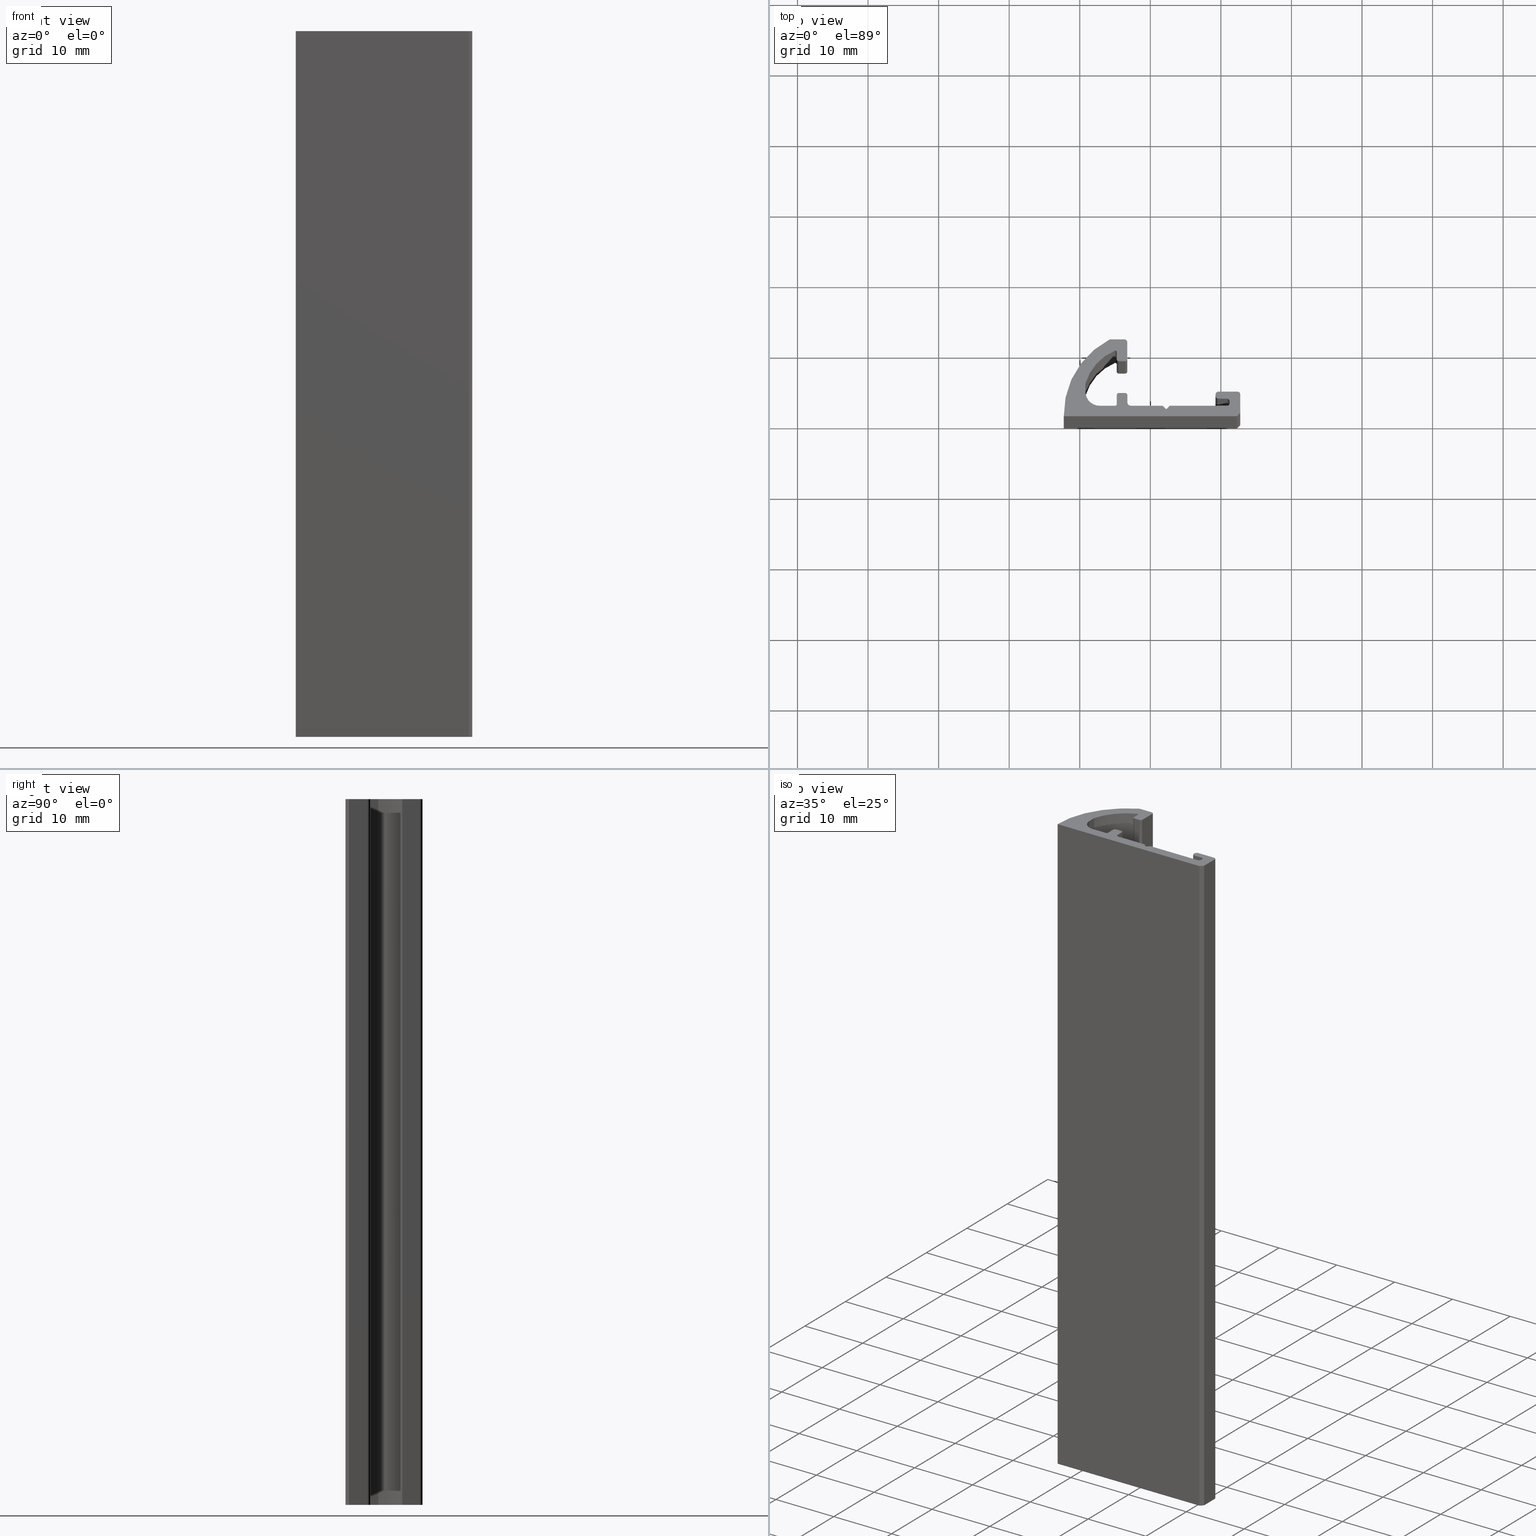
[diagram: canonical four-view strip — front | top / right | iso, engineering-drawing reading convention]
A machine part, canonical four-view strip (front | top / right | iso — engineering-drawing reading convention). The complete STEP part file that produces these views, byte-faithful:
ISO-10303-21;
HEADER;
/****************************************************************
 * Generated by software with PDE/Lib inside                    *
 * PDElib Version v4.4, created Mon 02/23/2004                  *
 * International Technegroup Inc. (www.iti-oh.com)              *
 ****************************************************************/
FILE_DESCRIPTION(('STEP AP203'),'2;1');
FILE_NAME('XB26225.stp','2011-03-21T16:29:36',(''),(''),'2009.3.110','THINKDESIGN','');
FILE_SCHEMA(('CONFIG_CONTROL_DESIGN'));
ENDSEC;
DATA;
#2=CARTESIAN_POINT('',(9.244307432465462,3.099999999671184,0.0));
#3=DIRECTION('',(-1.0,-5.297807E-010,0.0));
#4=DIRECTION('',(5.297807E-010,-1.0,0.0));
#5=AXIS2_PLACEMENT_3D('',#2,#3,#4);
#6=PLANE('',#5);
#7=CARTESIAN_POINT('',(9.244307432465462,3.099999999671184,0.0));
#8=VERTEX_POINT('',#7);
#9=CARTESIAN_POINT('',(9.244307432571418,2.899999999701663,0.0));
#10=VERTEX_POINT('',#9);
#11=CARTESIAN_POINT('',(9.244307432465462,3.099999999671184,0.0));
#12=DIRECTION('',(5.297807E-010,-1.0,0.0));
#13=VECTOR('',#12,0.199999999969521);
#14=LINE('',#11,#13);
#15=EDGE_CURVE('',#8,#10,#14,.T.);
#16=ORIENTED_EDGE('',*,*,#15,.T.);
#17=CARTESIAN_POINT('',(9.244307432571418,2.899999999701663,100.0));
#18=VERTEX_POINT('',#17);
#19=CARTESIAN_POINT('',(9.244307432571418,2.899999999701663,0.0));
#20=DIRECTION('',(0.0,0.0,1.0));
#21=VECTOR('',#20,100.0);
#22=LINE('',#19,#21);
#23=EDGE_CURVE('',#10,#18,#22,.T.);
#24=ORIENTED_EDGE('',*,*,#23,.T.);
#25=CARTESIAN_POINT('',(9.244307432465462,3.099999999671184,100.0));
#26=VERTEX_POINT('',#25);
#27=CARTESIAN_POINT('',(9.244307432465462,3.099999999671184,100.0));
#28=DIRECTION('',(5.297807E-010,-1.0,0.0));
#29=VECTOR('',#28,0.199999999969521);
#30=LINE('',#27,#29);
#31=EDGE_CURVE('',#26,#18,#30,.T.);
#32=ORIENTED_EDGE('',*,*,#31,.F.);
#33=CARTESIAN_POINT('',(9.244307432465462,3.099999999671184,0.0));
#34=DIRECTION('',(0.0,0.0,1.0));
#35=VECTOR('',#34,100.0);
#36=LINE('',#33,#35);
#37=EDGE_CURVE('',#8,#26,#36,.T.);
#38=ORIENTED_EDGE('',*,*,#37,.F.);
#39=EDGE_LOOP('',(#16,#24,#32,#38));
#40=FACE_OUTER_BOUND('',#39,.T.);
#41=ADVANCED_FACE('',(#40),#6,.T.);
#42=CARTESIAN_POINT('',(9.644307432531377,2.899999999701777,0.0));
#43=DIRECTION('',(0.0,0.0,1.0));
#44=DIRECTION('',(-1.0,-2.842171E-013,0.0));
#45=AXIS2_PLACEMENT_3D('',#42,#43,#44);
#46=CYLINDRICAL_SURFACE('',#45,0.399999999959960);
#47=CARTESIAN_POINT('',(9.644307432531377,2.499999999741817,0.0));
#48=VERTEX_POINT('',#47);
#49=CARTESIAN_POINT('',(9.644307432531377,2.899999999701777,0.0));
#50=DIRECTION('',(0.0,0.0,1.0));
#51=DIRECTION('',(-1.0,-2.842171E-013,0.0));
#52=AXIS2_PLACEMENT_3D('',#49,#50,#51);
#53=CIRCLE('',#52,0.399999999959960);
#54=EDGE_CURVE('',#10,#48,#53,.T.);
#55=ORIENTED_EDGE('',*,*,#54,.T.);
#56=CARTESIAN_POINT('',(9.644307432531377,2.499999999741817,100.0));
#57=VERTEX_POINT('',#56);
#58=CARTESIAN_POINT('',(9.644307432531377,2.499999999741817,0.0));
#59=DIRECTION('',(0.0,0.0,1.0));
#60=VECTOR('',#59,100.0);
#61=LINE('',#58,#60);
#62=EDGE_CURVE('',#48,#57,#61,.T.);
#63=ORIENTED_EDGE('',*,*,#62,.T.);
#64=CARTESIAN_POINT('',(9.644307432531377,2.899999999701777,100.0));
#65=DIRECTION('',(0.0,0.0,1.0));
#66=DIRECTION('',(-1.0,-2.842171E-013,0.0));
#67=AXIS2_PLACEMENT_3D('',#64,#65,#66);
#68=CIRCLE('',#67,0.399999999959960);
#69=EDGE_CURVE('',#18,#57,#68,.T.);
#70=ORIENTED_EDGE('',*,*,#69,.F.);
#71=ORIENTED_EDGE('',*,*,#23,.F.);
#72=EDGE_LOOP('',(#55,#63,#70,#71));
#73=FACE_OUTER_BOUND('',#72,.T.);
#74=ADVANCED_FACE('',(#73),#46,.T.);
#75=CARTESIAN_POINT('',(9.644307432531377,2.499999999741817,0.0));
#76=DIRECTION('',(0.0,-1.0,0.0));
#77=DIRECTION('',(1.0,0.0,0.0));
#78=AXIS2_PLACEMENT_3D('',#75,#76,#77);
#79=PLANE('',#78);
#80=CARTESIAN_POINT('',(10.844307432411370,2.499999999741817,0.0));
#81=VERTEX_POINT('',#80);
#82=CARTESIAN_POINT('',(9.644307432531377,2.499999999741817,0.0));
#83=DIRECTION('',(1.0,0.0,0.0));
#84=VECTOR('',#83,1.199999999879992);
#85=LINE('',#82,#84);
#86=EDGE_CURVE('',#48,#81,#85,.T.);
#87=ORIENTED_EDGE('',*,*,#86,.T.);
#88=CARTESIAN_POINT('',(10.844307432411370,2.499999999741817,100.0));
#89=VERTEX_POINT('',#88);
#90=CARTESIAN_POINT('',(10.844307432411370,2.499999999741817,0.0));
#91=DIRECTION('',(0.0,0.0,1.0));
#92=VECTOR('',#91,100.0);
#93=LINE('',#90,#92);
#94=EDGE_CURVE('',#81,#89,#93,.T.);
#95=ORIENTED_EDGE('',*,*,#94,.T.);
#96=CARTESIAN_POINT('',(9.644307432531377,2.499999999741817,100.0));
#97=DIRECTION('',(1.0,0.0,0.0));
#98=VECTOR('',#97,1.199999999879992);
#99=LINE('',#96,#98);
#100=EDGE_CURVE('',#57,#89,#99,.T.);
#101=ORIENTED_EDGE('',*,*,#100,.F.);
#102=ORIENTED_EDGE('',*,*,#62,.F.);
#103=EDGE_LOOP('',(#87,#95,#101,#102));
#104=FACE_OUTER_BOUND('',#103,.T.);
#105=ADVANCED_FACE('',(#104),#79,.T.);
#106=CARTESIAN_POINT('',(10.844307432411370,2.099999999781858,0.0));
#107=DIRECTION('',(0.0,0.0,-1.0));
#108=DIRECTION('',(6.123251E-017,1.0,0.0));
#109=AXIS2_PLACEMENT_3D('',#106,#107,#108);
#110=CYLINDRICAL_SURFACE('',#109,0.399999999959960);
#111=CARTESIAN_POINT('',(11.244307432371329,2.099999999781176,0.0));
#112=VERTEX_POINT('',#111);
#113=CARTESIAN_POINT('',(10.844307432411370,2.099999999781858,0.0));
#114=DIRECTION('',(0.0,0.0,-1.0));
#115=DIRECTION('',(1.0,-1.705303E-012,0.0));
#116=AXIS2_PLACEMENT_3D('',#113,#114,#115);
#117=CIRCLE('',#116,0.399999999959960);
#118=EDGE_CURVE('',#81,#112,#117,.T.);
#119=ORIENTED_EDGE('',*,*,#118,.T.);
#120=CARTESIAN_POINT('',(11.244307432371329,2.099999999781176,100.0));
#121=VERTEX_POINT('',#120);
#122=CARTESIAN_POINT('',(11.244307432371329,2.099999999781176,0.0));
#123=DIRECTION('',(0.0,0.0,1.0));
#124=VECTOR('',#123,100.0);
#125=LINE('',#122,#124);
#126=EDGE_CURVE('',#112,#121,#125,.T.);
#127=ORIENTED_EDGE('',*,*,#126,.T.);
#128=CARTESIAN_POINT('',(10.844307432411370,2.099999999781858,100.0));
#129=DIRECTION('',(0.0,0.0,-1.0));
#130=DIRECTION('',(1.0,-1.705303E-012,0.0));
#131=AXIS2_PLACEMENT_3D('',#128,#129,#130);
#132=CIRCLE('',#131,0.399999999959960);
#133=EDGE_CURVE('',#89,#121,#132,.T.);
#134=ORIENTED_EDGE('',*,*,#133,.F.);
#135=ORIENTED_EDGE('',*,*,#94,.F.);
#136=EDGE_LOOP('',(#119,#127,#134,#135));
#137=FACE_OUTER_BOUND('',#136,.T.);
#138=ADVANCED_FACE('',(#137),#110,.F.);
#139=CARTESIAN_POINT('',(11.244307432371329,2.099999999781176,0.0));
#140=DIRECTION('',(-1.0,0.0,0.0));
#141=DIRECTION('',(0.0,-1.0,0.0));
#142=AXIS2_PLACEMENT_3D('',#139,#140,#141);
#143=PLANE('',#142);
#144=CARTESIAN_POINT('',(11.244307432371329,1.899999999801196,0.0));
#145=VERTEX_POINT('',#144);
#146=CARTESIAN_POINT('',(11.244307432371329,2.099999999781176,0.0));
#147=DIRECTION('',(0.0,-1.0,0.0));
#148=VECTOR('',#147,0.199999999979980);
#149=LINE('',#146,#148);
#150=EDGE_CURVE('',#112,#145,#149,.T.);
#151=ORIENTED_EDGE('',*,*,#150,.T.);
#152=CARTESIAN_POINT('',(11.244307432371329,1.899999999801196,100.0));
#153=VERTEX_POINT('',#152);
#154=CARTESIAN_POINT('',(11.244307432371329,1.899999999801196,0.0));
#155=DIRECTION('',(0.0,0.0,1.0));
#156=VECTOR('',#155,100.0);
#157=LINE('',#154,#156);
#158=EDGE_CURVE('',#145,#153,#157,.T.);
#159=ORIENTED_EDGE('',*,*,#158,.T.);
#160=CARTESIAN_POINT('',(11.244307432371329,2.099999999781176,100.0));
#161=DIRECTION('',(0.0,-1.0,0.0));
#162=VECTOR('',#161,0.199999999979980);
#163=LINE('',#160,#162);
#164=EDGE_CURVE('',#121,#153,#163,.T.);
#165=ORIENTED_EDGE('',*,*,#164,.F.);
#166=ORIENTED_EDGE('',*,*,#126,.F.);
#167=EDGE_LOOP('',(#151,#159,#165,#166));
#168=FACE_OUTER_BOUND('',#167,.T.);
#169=ADVANCED_FACE('',(#168),#143,.T.);
#170=CARTESIAN_POINT('',(10.844307432411256,1.899999999785450,0.0));
#171=DIRECTION('',(0.0,0.0,-1.0));
#172=DIRECTION('',(1.0,3.936401E-011,0.0));
#173=AXIS2_PLACEMENT_3D('',#170,#171,#172);
#174=CYLINDRICAL_SURFACE('',#173,0.399999999960016);
#175=CARTESIAN_POINT('',(10.844307432411256,1.499999999825434,0.0));
#176=VERTEX_POINT('',#175);
#177=CARTESIAN_POINT('',(10.844307432411256,1.899999999785450,0.0));
#178=DIRECTION('',(0.0,0.0,-1.0));
#179=DIRECTION('',(0.0,-1.0,0.0));
#180=AXIS2_PLACEMENT_3D('',#177,#178,#179);
#181=CIRCLE('',#180,0.399999999960016);
#182=EDGE_CURVE('',#145,#176,#181,.T.);
#183=ORIENTED_EDGE('',*,*,#182,.T.);
#184=CARTESIAN_POINT('',(10.844307432411256,1.499999999825434,100.0));
#185=VERTEX_POINT('',#184);
#186=CARTESIAN_POINT('',(10.844307432411256,1.499999999825434,0.0));
#187=DIRECTION('',(0.0,0.0,1.0));
#188=VECTOR('',#187,100.0);
#189=LINE('',#186,#188);
#190=EDGE_CURVE('',#176,#185,#189,.T.);
#191=ORIENTED_EDGE('',*,*,#190,.T.);
#192=CARTESIAN_POINT('',(10.844307432411256,1.899999999785450,100.0));
#193=DIRECTION('',(0.0,0.0,-1.0));
#194=DIRECTION('',(0.0,-1.0,0.0));
#195=AXIS2_PLACEMENT_3D('',#192,#193,#194);
#196=CIRCLE('',#195,0.399999999960016);
#197=EDGE_CURVE('',#153,#185,#196,.T.);
#198=ORIENTED_EDGE('',*,*,#197,.F.);
#199=ORIENTED_EDGE('',*,*,#158,.F.);
#200=EDGE_LOOP('',(#183,#191,#198,#199));
#201=FACE_OUTER_BOUND('',#200,.T.);
#202=ADVANCED_FACE('',(#201),#174,.F.);
#203=CARTESIAN_POINT('',(10.844307432411256,1.499999999825434,0.0));
#204=DIRECTION('',(-1.284240E-012,1.0,0.0));
#205=DIRECTION('',(-1.0,-1.284240E-012,0.0));
#206=AXIS2_PLACEMENT_3D('',#203,#204,#205);
#207=PLANE('',#206);
#208=CARTESIAN_POINT('',(2.744307433262634,1.499999999815032,0.0));
#209=VERTEX_POINT('',#208);
#210=CARTESIAN_POINT('',(10.844307432411256,1.499999999825434,0.0));
#211=DIRECTION('',(-1.0,-1.284240E-012,0.0));
#212=VECTOR('',#211,8.099999999148622);
#213=LINE('',#210,#212);
#214=EDGE_CURVE('',#176,#209,#213,.T.);
#215=ORIENTED_EDGE('',*,*,#214,.T.);
#216=CARTESIAN_POINT('',(2.744307433262634,1.499999999815032,100.0));
#217=VERTEX_POINT('',#216);
#218=CARTESIAN_POINT('',(2.744307433262634,1.499999999815032,0.0));
#219=DIRECTION('',(0.0,0.0,1.0));
#220=VECTOR('',#219,100.0);
#221=LINE('',#218,#220);
#222=EDGE_CURVE('',#209,#217,#221,.T.);
#223=ORIENTED_EDGE('',*,*,#222,.T.);
#224=CARTESIAN_POINT('',(10.844307432411256,1.499999999825434,100.0));
#225=DIRECTION('',(-1.0,-1.284240E-012,0.0));
#226=VECTOR('',#225,8.099999999148622);
#227=LINE('',#224,#226);
#228=EDGE_CURVE('',#185,#217,#227,.T.);
#229=ORIENTED_EDGE('',*,*,#228,.F.);
#230=ORIENTED_EDGE('',*,*,#190,.F.);
#231=EDGE_LOOP('',(#215,#223,#229,#230));
#232=FACE_OUTER_BOUND('',#231,.T.);
#233=ADVANCED_FACE('',(#232),#207,.T.);
#234=CARTESIAN_POINT('',(2.744307433262634,1.499999999815032,0.0));
#235=DIRECTION('',(-0.707106781179112,0.707106781193984,0.0));
#236=DIRECTION('',(-0.707106781193984,-0.707106781179112,0.0));
#237=AXIS2_PLACEMENT_3D('',#234,#235,#236);
#238=PLANE('',#237);
#239=CARTESIAN_POINT('',(2.244307433178619,0.999999999741533,0.0));
#240=VERTEX_POINT('',#239);
#241=CARTESIAN_POINT('',(2.744307433262634,1.499999999815032,0.0));
#242=DIRECTION('',(-0.707106781193983,-0.707106781179112,0.0));
#243=VECTOR('',#242,0.707106781297926);
#244=LINE('',#241,#243);
#245=EDGE_CURVE('',#209,#240,#244,.T.);
#246=ORIENTED_EDGE('',*,*,#245,.T.);
#247=CARTESIAN_POINT('',(2.244307433178619,0.999999999741533,100.0));
#248=VERTEX_POINT('',#247);
#249=CARTESIAN_POINT('',(2.244307433178619,0.999999999741533,0.0));
#250=DIRECTION('',(0.0,0.0,1.0));
#251=VECTOR('',#250,100.0);
#252=LINE('',#249,#251);
#253=EDGE_CURVE('',#240,#248,#252,.T.);
#254=ORIENTED_EDGE('',*,*,#253,.T.);
#255=CARTESIAN_POINT('',(2.744307433262634,1.499999999815032,100.0));
#256=DIRECTION('',(-0.707106781193983,-0.707106781179112,0.0));
#257=VECTOR('',#256,0.707106781297926);
#258=LINE('',#255,#257);
#259=EDGE_CURVE('',#217,#248,#258,.T.);
#260=ORIENTED_EDGE('',*,*,#259,.F.);
#261=ORIENTED_EDGE('',*,*,#222,.F.);
#262=EDGE_LOOP('',(#246,#254,#260,#261));
#263=FACE_OUTER_BOUND('',#262,.T.);
#264=ADVANCED_FACE('',(#263),#238,.T.);
#265=CARTESIAN_POINT('',(2.244307433178619,0.999999999741533,0.0));
#266=DIRECTION('',(0.707106781186387,0.707106781186708,0.0));
#267=DIRECTION('',(-0.707106781186708,0.707106781186387,0.0));
#268=AXIS2_PLACEMENT_3D('',#265,#266,#267);
#269=PLANE('',#268);
#270=CARTESIAN_POINT('',(1.744307433078006,1.499999999841919,0.0));
#271=VERTEX_POINT('',#270);
#272=CARTESIAN_POINT('',(2.244307433178619,0.999999999741533,0.0));
#273=DIRECTION('',(-0.707106781186708,0.707106781186387,0.0));
#274=VECTOR('',#273,0.707106781328675);
#275=LINE('',#272,#274);
#276=EDGE_CURVE('',#240,#271,#275,.T.);
#277=ORIENTED_EDGE('',*,*,#276,.T.);
#278=CARTESIAN_POINT('',(1.744307433078006,1.499999999841919,100.0));
#279=VERTEX_POINT('',#278);
#280=CARTESIAN_POINT('',(1.744307433078006,1.499999999841919,0.0));
#281=DIRECTION('',(0.0,0.0,1.0));
#282=VECTOR('',#281,100.0);
#283=LINE('',#280,#282);
#284=EDGE_CURVE('',#271,#279,#283,.T.);
#285=ORIENTED_EDGE('',*,*,#284,.T.);
#286=CARTESIAN_POINT('',(2.244307433178619,0.999999999741533,100.0));
#287=DIRECTION('',(-0.707106781186708,0.707106781186387,0.0));
#288=VECTOR('',#287,0.707106781328675);
#289=LINE('',#286,#288);
#290=EDGE_CURVE('',#248,#279,#289,.T.);
#291=ORIENTED_EDGE('',*,*,#290,.F.);
#292=ORIENTED_EDGE('',*,*,#253,.F.);
#293=EDGE_LOOP('',(#277,#285,#291,#292));
#294=FACE_OUTER_BOUND('',#293,.T.);
#295=ADVANCED_FACE('',(#294),#269,.T.);
#296=CARTESIAN_POINT('',(1.744307433078006,1.499999999841919,0.0));
#297=DIRECTION('',(0.0,1.0,0.0));
#298=DIRECTION('',(-1.0,0.0,0.0));
#299=AXIS2_PLACEMENT_3D('',#296,#297,#298);
#300=PLANE('',#299);
#301=CARTESIAN_POINT('',(-2.755692566471907,1.499999999842089,0.0));
#302=VERTEX_POINT('',#301);
#303=CARTESIAN_POINT('',(1.744307433078006,1.499999999841919,0.0));
#304=DIRECTION('',(-1.0,0.0,0.0));
#305=VECTOR('',#304,4.499999999549914);
#306=LINE('',#303,#305);
#307=EDGE_CURVE('',#271,#302,#306,.T.);
#308=ORIENTED_EDGE('',*,*,#307,.T.);
#309=CARTESIAN_POINT('',(-2.755692566471907,1.499999999842089,100.0));
#310=VERTEX_POINT('',#309);
#311=CARTESIAN_POINT('',(-2.755692566471907,1.499999999842089,0.0));
#312=DIRECTION('',(0.0,0.0,1.0));
#313=VECTOR('',#312,100.0);
#314=LINE('',#311,#313);
#315=EDGE_CURVE('',#302,#310,#314,.T.);
#316=ORIENTED_EDGE('',*,*,#315,.T.);
#317=CARTESIAN_POINT('',(1.744307433078006,1.499999999841919,100.0));
#318=DIRECTION('',(-1.0,0.0,0.0));
#319=VECTOR('',#318,4.499999999549914);
#320=LINE('',#317,#319);
#321=EDGE_CURVE('',#279,#310,#320,.T.);
#322=ORIENTED_EDGE('',*,*,#321,.F.);
#323=ORIENTED_EDGE('',*,*,#284,.F.);
#324=EDGE_LOOP('',(#308,#316,#322,#323));
#325=FACE_OUTER_BOUND('',#324,.T.);
#326=ADVANCED_FACE('',(#325),#300,.T.);
#327=CARTESIAN_POINT('',(-2.755692566471907,1.999999999792067,0.0));
#328=DIRECTION('',(0.0,0.0,-1.0));
#329=DIRECTION('',(-1.960054E-015,-1.0,0.0));
#330=AXIS2_PLACEMENT_3D('',#327,#328,#329);
#331=CYLINDRICAL_SURFACE('',#330,0.499999999950000);
#332=CARTESIAN_POINT('',(-3.255692566421885,1.999999999792067,0.0));
#333=VERTEX_POINT('',#332);
#334=CARTESIAN_POINT('',(-2.755692566471907,1.999999999792067,0.0));
#335=DIRECTION('',(0.0,0.0,-1.0));
#336=DIRECTION('',(1.0,0.0,0.0));
#337=AXIS2_PLACEMENT_3D('',#334,#335,#336);
#338=CIRCLE('',#337,0.499999999950000);
#339=EDGE_CURVE('',#302,#333,#338,.T.);
#340=ORIENTED_EDGE('',*,*,#339,.T.);
#341=CARTESIAN_POINT('',(-3.255692566421885,1.999999999792067,100.0));
#342=VERTEX_POINT('',#341);
#343=CARTESIAN_POINT('',(-3.255692566421885,1.999999999792067,0.0));
#344=DIRECTION('',(0.0,0.0,1.0));
#345=VECTOR('',#344,100.0);
#346=LINE('',#343,#345);
#347=EDGE_CURVE('',#333,#342,#346,.T.);
#348=ORIENTED_EDGE('',*,*,#347,.T.);
#349=CARTESIAN_POINT('',(-2.755692566471907,1.999999999792067,100.0));
#350=DIRECTION('',(0.0,0.0,-1.0));
#351=DIRECTION('',(1.0,0.0,0.0));
#352=AXIS2_PLACEMENT_3D('',#349,#350,#351);
#353=CIRCLE('',#352,0.499999999950000);
#354=EDGE_CURVE('',#310,#342,#353,.T.);
#355=ORIENTED_EDGE('',*,*,#354,.F.);
#356=ORIENTED_EDGE('',*,*,#315,.F.);
#357=EDGE_LOOP('',(#340,#348,#355,#356));
#358=FACE_OUTER_BOUND('',#357,.T.);
#359=ADVANCED_FACE('',(#358),#331,.F.);
#360=CARTESIAN_POINT('',(-3.255692566421885,1.999999999792067,0.0));
#361=DIRECTION('',(1.0,0.0,0.0));
#362=DIRECTION('',(0.0,1.0,0.0));
#363=AXIS2_PLACEMENT_3D('',#360,#361,#362);
#364=PLANE('',#363);
#365=CARTESIAN_POINT('',(-3.255692566421885,2.999999999691966,0.0));
#366=VERTEX_POINT('',#365);
#367=CARTESIAN_POINT('',(-3.255692566421885,1.999999999792067,0.0));
#368=DIRECTION('',(0.0,1.0,0.0));
#369=VECTOR('',#368,0.999999999899899);
#370=LINE('',#367,#369);
#371=EDGE_CURVE('',#333,#366,#370,.T.);
#372=ORIENTED_EDGE('',*,*,#371,.T.);
#373=CARTESIAN_POINT('',(-3.255692566421885,2.999999999691966,100.0));
#374=VERTEX_POINT('',#373);
#375=CARTESIAN_POINT('',(-3.255692566421885,2.999999999691966,0.0));
#376=DIRECTION('',(0.0,0.0,1.0));
#377=VECTOR('',#376,100.0);
#378=LINE('',#375,#377);
#379=EDGE_CURVE('',#366,#374,#378,.T.);
#380=ORIENTED_EDGE('',*,*,#379,.T.);
#381=CARTESIAN_POINT('',(-3.255692566421885,1.999999999792067,100.0));
#382=DIRECTION('',(0.0,1.0,0.0));
#383=VECTOR('',#382,0.999999999899899);
#384=LINE('',#381,#383);
#385=EDGE_CURVE('',#342,#374,#384,.T.);
#386=ORIENTED_EDGE('',*,*,#385,.F.);
#387=ORIENTED_EDGE('',*,*,#347,.F.);
#388=EDGE_LOOP('',(#372,#380,#386,#387));
#389=FACE_OUTER_BOUND('',#388,.T.);
#390=ADVANCED_FACE('',(#389),#364,.T.);
#391=CARTESIAN_POINT('',(-3.555692566391940,2.999999999691966,0.0));
#392=DIRECTION('',(0.0,0.0,1.0));
#393=DIRECTION('',(1.0,0.0,0.0));
#394=AXIS2_PLACEMENT_3D('',#391,#392,#393);
#395=CYLINDRICAL_SURFACE('',#394,0.299999999970000);
#396=CARTESIAN_POINT('',(-3.555692566391940,3.299999999661964,0.0));
#397=VERTEX_POINT('',#396);
#398=CARTESIAN_POINT('',(-3.555692566391940,2.999999999691966,0.0));
#399=DIRECTION('',(0.0,0.0,1.0));
#400=DIRECTION('',(1.0,0.0,0.0));
#401=AXIS2_PLACEMENT_3D('',#398,#399,#400);
#402=CIRCLE('',#401,0.299999999970000);
#403=EDGE_CURVE('',#366,#397,#402,.T.);
#404=ORIENTED_EDGE('',*,*,#403,.T.);
#405=CARTESIAN_POINT('',(-3.555692566391940,3.299999999661964,100.0));
#406=VERTEX_POINT('',#405);
#407=CARTESIAN_POINT('',(-3.555692566391940,3.299999999661964,0.0));
#408=DIRECTION('',(0.0,0.0,1.0));
#409=VECTOR('',#408,100.0);
#410=LINE('',#407,#409);
#411=EDGE_CURVE('',#397,#406,#410,.T.);
#412=ORIENTED_EDGE('',*,*,#411,.T.);
#413=CARTESIAN_POINT('',(-3.555692566391940,2.999999999691966,100.0));
#414=DIRECTION('',(0.0,0.0,1.0));
#415=DIRECTION('',(1.0,0.0,0.0));
#416=AXIS2_PLACEMENT_3D('',#413,#414,#415);
#417=CIRCLE('',#416,0.299999999970000);
#418=EDGE_CURVE('',#374,#406,#417,.T.);
#419=ORIENTED_EDGE('',*,*,#418,.F.);
#420=ORIENTED_EDGE('',*,*,#379,.F.);
#421=EDGE_LOOP('',(#404,#412,#419,#420));
#422=FACE_OUTER_BOUND('',#421,.T.);
#423=ADVANCED_FACE('',(#422),#395,.T.);
#424=CARTESIAN_POINT('',(-3.555692566391940,3.299999999661964,0.0));
#425=DIRECTION('',(0.0,1.0,0.0));
#426=DIRECTION('',(-1.0,0.0,0.0));
#427=AXIS2_PLACEMENT_3D('',#424,#425,#426);
#428=PLANE('',#427);
#429=CARTESIAN_POINT('',(-4.455692566301991,3.299999999661964,0.0));
#430=VERTEX_POINT('',#429);
#431=CARTESIAN_POINT('',(-3.555692566391940,3.299999999661964,0.0));
#432=DIRECTION('',(-1.0,0.0,0.0));
#433=VECTOR('',#432,0.899999999910051);
#434=LINE('',#431,#433);
#435=EDGE_CURVE('',#397,#430,#434,.T.);
#436=ORIENTED_EDGE('',*,*,#435,.T.);
#437=CARTESIAN_POINT('',(-4.455692566301991,3.299999999661964,100.0));
#438=VERTEX_POINT('',#437);
#439=CARTESIAN_POINT('',(-4.455692566301991,3.299999999661964,0.0));
#440=DIRECTION('',(0.0,0.0,1.0));
#441=VECTOR('',#440,100.0);
#442=LINE('',#439,#441);
#443=EDGE_CURVE('',#430,#438,#442,.T.);
#444=ORIENTED_EDGE('',*,*,#443,.T.);
#445=CARTESIAN_POINT('',(-3.555692566391940,3.299999999661964,100.0));
#446=DIRECTION('',(-1.0,0.0,0.0));
#447=VECTOR('',#446,0.899999999910051);
#448=LINE('',#445,#447);
#449=EDGE_CURVE('',#406,#438,#448,.T.);
#450=ORIENTED_EDGE('',*,*,#449,.F.);
#451=ORIENTED_EDGE('',*,*,#411,.F.);
#452=EDGE_LOOP('',(#436,#444,#450,#451));
#453=FACE_OUTER_BOUND('',#452,.T.);
#454=ADVANCED_FACE('',(#453),#428,.T.);
#455=CARTESIAN_POINT('',(-4.455692566301991,2.999999999691966,0.0));
#456=DIRECTION('',(0.0,0.0,1.0));
#457=DIRECTION('',(1.0,0.0,0.0));
#458=AXIS2_PLACEMENT_3D('',#455,#456,#457);
#459=CYLINDRICAL_SURFACE('',#458,0.299999999970000);
#460=CARTESIAN_POINT('',(-4.755692566271932,2.999999999691966,0.0));
#461=VERTEX_POINT('',#460);
#462=CARTESIAN_POINT('',(-4.455692566301991,2.999999999691966,0.0));
#463=DIRECTION('',(0.0,0.0,1.0));
#464=DIRECTION('',(1.0,0.0,0.0));
#465=AXIS2_PLACEMENT_3D('',#462,#463,#464);
#466=CIRCLE('',#465,0.299999999970000);
#467=EDGE_CURVE('',#430,#461,#466,.T.);
#468=ORIENTED_EDGE('',*,*,#467,.T.);
#469=CARTESIAN_POINT('',(-4.755692566271932,2.999999999691966,100.0));
#470=VERTEX_POINT('',#469);
#471=CARTESIAN_POINT('',(-4.755692566271932,2.999999999691966,0.0));
#472=DIRECTION('',(0.0,0.0,1.0));
#473=VECTOR('',#472,100.0);
#474=LINE('',#471,#473);
#475=EDGE_CURVE('',#461,#470,#474,.T.);
#476=ORIENTED_EDGE('',*,*,#475,.T.);
#477=CARTESIAN_POINT('',(-4.455692566301991,2.999999999691966,100.0));
#478=DIRECTION('',(0.0,0.0,1.0));
#479=DIRECTION('',(1.0,0.0,0.0));
#480=AXIS2_PLACEMENT_3D('',#477,#478,#479);
#481=CIRCLE('',#480,0.299999999970000);
#482=EDGE_CURVE('',#438,#470,#481,.T.);
#483=ORIENTED_EDGE('',*,*,#482,.F.);
#484=ORIENTED_EDGE('',*,*,#443,.F.);
#485=EDGE_LOOP('',(#468,#476,#483,#484));
#486=FACE_OUTER_BOUND('',#485,.T.);
#487=ADVANCED_FACE('',(#486),#459,.T.);
#488=CARTESIAN_POINT('',(-4.755692566271932,2.999999999691966,0.0));
#489=DIRECTION('',(-1.0,0.0,0.0));
#490=DIRECTION('',(0.0,-1.0,0.0));
#491=AXIS2_PLACEMENT_3D('',#488,#489,#490);
#492=PLANE('',#491);
#493=CARTESIAN_POINT('',(-4.755692566271932,1.699999999822069,0.0));
#494=VERTEX_POINT('',#493);
#495=CARTESIAN_POINT('',(-4.755692566271932,2.999999999691966,0.0));
#496=DIRECTION('',(0.0,-1.0,0.0));
#497=VECTOR('',#496,1.299999999869897);
#498=LINE('',#495,#497);
#499=EDGE_CURVE('',#461,#494,#498,.T.);
#500=ORIENTED_EDGE('',*,*,#499,.T.);
#501=CARTESIAN_POINT('',(-4.755692566271932,1.699999999822069,100.0));
#502=VERTEX_POINT('',#501);
#503=CARTESIAN_POINT('',(-4.755692566271932,1.699999999822069,0.0));
#504=DIRECTION('',(0.0,0.0,1.0));
#505=VECTOR('',#504,100.0);
#506=LINE('',#503,#505);
#507=EDGE_CURVE('',#494,#502,#506,.T.);
#508=ORIENTED_EDGE('',*,*,#507,.T.);
#509=CARTESIAN_POINT('',(-4.755692566271932,2.999999999691966,100.0));
#510=DIRECTION('',(0.0,-1.0,0.0));
#511=VECTOR('',#510,1.299999999869897);
#512=LINE('',#509,#511);
#513=EDGE_CURVE('',#470,#502,#512,.T.);
#514=ORIENTED_EDGE('',*,*,#513,.F.);
#515=ORIENTED_EDGE('',*,*,#475,.F.);
#516=EDGE_LOOP('',(#500,#508,#514,#515));
#517=FACE_OUTER_BOUND('',#516,.T.);
#518=ADVANCED_FACE('',(#517),#492,.T.);
#519=CARTESIAN_POINT('',(-4.955692566251969,1.699999999822069,0.0));
#520=DIRECTION('',(0.0,0.0,-1.0));
#521=DIRECTION('',(1.0,0.0,0.0));
#522=AXIS2_PLACEMENT_3D('',#519,#520,#521);
#523=CYLINDRICAL_SURFACE('',#522,0.199999999979989);
#524=CARTESIAN_POINT('',(-4.955692566251969,1.499999999841919,0.0));
#525=VERTEX_POINT('',#524);
#526=CARTESIAN_POINT('',(-4.955692566251969,1.699999999822069,0.0));
#527=DIRECTION('',(0.0,0.0,-1.0));
#528=DIRECTION('',(1.0,0.0,0.0));
#529=AXIS2_PLACEMENT_3D('',#526,#527,#528);
#530=CIRCLE('',#529,0.199999999979989);
#531=EDGE_CURVE('',#494,#525,#530,.T.);
#532=ORIENTED_EDGE('',*,*,#531,.T.);
#533=CARTESIAN_POINT('',(-4.955692566251969,1.499999999841919,100.0));
#534=VERTEX_POINT('',#533);
#535=CARTESIAN_POINT('',(-4.955692566251969,1.499999999841919,0.0));
#536=DIRECTION('',(0.0,0.0,1.0));
#537=VECTOR('',#536,100.0);
#538=LINE('',#535,#537);
#539=EDGE_CURVE('',#525,#534,#538,.T.);
#540=ORIENTED_EDGE('',*,*,#539,.T.);
#541=CARTESIAN_POINT('',(-4.955692566251969,1.699999999822069,100.0));
#542=DIRECTION('',(0.0,0.0,-1.0));
#543=DIRECTION('',(1.0,0.0,0.0));
#544=AXIS2_PLACEMENT_3D('',#541,#542,#543);
#545=CIRCLE('',#544,0.199999999979989);
#546=EDGE_CURVE('',#502,#534,#545,.T.);
#547=ORIENTED_EDGE('',*,*,#546,.F.);
#548=ORIENTED_EDGE('',*,*,#507,.F.);
#549=EDGE_LOOP('',(#532,#540,#547,#548));
#550=FACE_OUTER_BOUND('',#549,.T.);
#551=ADVANCED_FACE('',(#550),#523,.F.);
#552=CARTESIAN_POINT('',(-4.955692566251969,1.499999999841919,0.0));
#553=DIRECTION('',(0.0,1.0,0.0));
#554=DIRECTION('',(-1.0,0.0,0.0));
#555=AXIS2_PLACEMENT_3D('',#552,#553,#554);
#556=PLANE('',#555);
#557=CARTESIAN_POINT('',(-7.195547831496015,1.499999999841919,0.0));
#558=VERTEX_POINT('',#557);
#559=CARTESIAN_POINT('',(-4.955692566251969,1.499999999841919,0.0));
#560=DIRECTION('',(-1.0,0.0,0.0));
#561=VECTOR('',#560,2.239855265244046);
#562=LINE('',#559,#561);
#563=EDGE_CURVE('',#525,#558,#562,.T.);
#564=ORIENTED_EDGE('',*,*,#563,.T.);
#565=CARTESIAN_POINT('',(-7.195547831496015,1.499999999841919,100.0));
#566=VERTEX_POINT('',#565);
#567=CARTESIAN_POINT('',(-7.195547831496015,1.499999999841919,0.0));
#568=DIRECTION('',(0.0,0.0,1.0));
#569=VECTOR('',#568,100.0);
#570=LINE('',#567,#569);
#571=EDGE_CURVE('',#558,#566,#570,.T.);
#572=ORIENTED_EDGE('',*,*,#571,.T.);
#573=CARTESIAN_POINT('',(-4.955692566251969,1.499999999841919,100.0));
#574=DIRECTION('',(-1.0,0.0,0.0));
#575=VECTOR('',#574,2.239855265244046);
#576=LINE('',#573,#575);
#577=EDGE_CURVE('',#534,#566,#576,.T.);
#578=ORIENTED_EDGE('',*,*,#577,.F.);
#579=ORIENTED_EDGE('',*,*,#539,.F.);
#580=EDGE_LOOP('',(#564,#572,#578,#579));
#581=FACE_OUTER_BOUND('',#580,.T.);
#582=ADVANCED_FACE('',(#581),#556,.T.);
#583=CARTESIAN_POINT('',(-7.195547831496015,3.499999999641943,0.0));
#584=DIRECTION('',(0.0,0.0,-1.0));
#585=DIRECTION('',(-1.960054E-015,-1.0,0.0));
#586=AXIS2_PLACEMENT_3D('',#583,#584,#585);
#587=CYLINDRICAL_SURFACE('',#586,1.999999999799999);
#588=CARTESIAN_POINT('',(-9.195547831295926,3.499999999641943,0.0));
#589=VERTEX_POINT('',#588);
#590=CARTESIAN_POINT('',(-7.195547831496015,3.499999999641943,0.0));
#591=DIRECTION('',(0.0,0.0,-1.0));
#592=DIRECTION('',(1.0,0.0,0.0));
#593=AXIS2_PLACEMENT_3D('',#590,#591,#592);
#594=CIRCLE('',#593,1.999999999799999);
#595=EDGE_CURVE('',#558,#589,#594,.T.);
#596=ORIENTED_EDGE('',*,*,#595,.T.);
#597=CARTESIAN_POINT('',(-9.195547831295926,3.499999999641943,100.0));
#598=VERTEX_POINT('',#597);
#599=CARTESIAN_POINT('',(-9.195547831295926,3.499999999641943,0.0));
#600=DIRECTION('',(0.0,0.0,1.0));
#601=VECTOR('',#600,100.0);
#602=LINE('',#599,#601);
#603=EDGE_CURVE('',#589,#598,#602,.T.);
#604=ORIENTED_EDGE('',*,*,#603,.T.);
#605=CARTESIAN_POINT('',(-7.195547831496015,3.499999999641943,100.0));
#606=DIRECTION('',(0.0,0.0,-1.0));
#607=DIRECTION('',(1.0,0.0,0.0));
#608=AXIS2_PLACEMENT_3D('',#605,#606,#607);
#609=CIRCLE('',#608,1.999999999799999);
#610=EDGE_CURVE('',#566,#598,#609,.T.);
#611=ORIENTED_EDGE('',*,*,#610,.F.);
#612=ORIENTED_EDGE('',*,*,#571,.F.);
#613=EDGE_LOOP('',(#596,#604,#611,#612));
#614=FACE_OUTER_BOUND('',#613,.T.);
#615=ADVANCED_FACE('',(#614),#587,.F.);
#616=CARTESIAN_POINT('',(-9.195547831295926,3.499999999641943,0.0));
#617=DIRECTION('',(1.0,0.0,0.0));
#618=DIRECTION('',(0.0,1.0,0.0));
#619=AXIS2_PLACEMENT_3D('',#616,#617,#618);
#620=PLANE('',#619);
#621=CARTESIAN_POINT('',(-9.195547831296153,4.626529070951960,0.0));
#622=VERTEX_POINT('',#621);
#623=CARTESIAN_POINT('',(-9.195547831295926,3.499999999641943,0.0));
#624=DIRECTION('',(0.0,1.0,0.0));
#625=VECTOR('',#624,1.126529071310415);
#626=LINE('',#623,#625);
#627=EDGE_CURVE('',#589,#622,#626,.T.);
#628=ORIENTED_EDGE('',*,*,#627,.T.);
#629=CARTESIAN_POINT('',(-9.195547831296153,4.626529070951960,100.0));
#630=VERTEX_POINT('',#629);
#631=CARTESIAN_POINT('',(-9.195547831296153,4.626529070951960,0.0));
#632=DIRECTION('',(0.0,0.0,1.0));
#633=VECTOR('',#632,100.0);
#634=LINE('',#631,#633);
#635=EDGE_CURVE('',#622,#630,#634,.T.);
#636=ORIENTED_EDGE('',*,*,#635,.T.);
#637=CARTESIAN_POINT('',(-9.195547831295926,3.499999999641943,100.0));
#638=DIRECTION('',(0.0,1.0,0.0));
#639=VECTOR('',#638,1.126529071310415);
#640=LINE('',#637,#639);
#641=EDGE_CURVE('',#598,#630,#640,.T.);
#642=ORIENTED_EDGE('',*,*,#641,.F.);
#643=ORIENTED_EDGE('',*,*,#603,.F.);
#644=EDGE_LOOP('',(#628,#636,#642,#643));
#645=FACE_OUTER_BOUND('',#644,.T.);
#646=ADVANCED_FACE('',(#645),#620,.T.);
#647=CARTESIAN_POINT('',(-2.254513155987638,2.622113467691463,0.0));
#648=DIRECTION('',(0.0,0.0,-1.0));
#649=DIRECTION('',(-0.960742676624798,0.277441001497289,0.0));
#650=AXIS2_PLACEMENT_3D('',#647,#648,#649);
#651=CYLINDRICAL_SURFACE('',#650,7.224655304886772);
#652=CARTESIAN_POINT('',(-5.032598244687392,9.291287892938783,0.0));
#653=VERTEX_POINT('',#652);
#654=CARTESIAN_POINT('',(-2.254513155987638,2.622113467691463,0.0));
#655=DIRECTION('',(0.0,0.0,-1.0));
#656=DIRECTION('',(1.0,0.0,0.0));
#657=AXIS2_PLACEMENT_3D('',#654,#655,#656);
#658=CIRCLE('',#657,7.224655304886772);
#659=EDGE_CURVE('',#622,#653,#658,.T.);
#660=ORIENTED_EDGE('',*,*,#659,.T.);
#661=CARTESIAN_POINT('',(-5.032598244687392,9.291287892938783,100.0));
#662=VERTEX_POINT('',#661);
#663=CARTESIAN_POINT('',(-5.032598244687392,9.291287892938783,0.0));
#664=DIRECTION('',(0.0,0.0,1.0));
#665=VECTOR('',#664,100.0);
#666=LINE('',#663,#665);
#667=EDGE_CURVE('',#653,#662,#666,.T.);
#668=ORIENTED_EDGE('',*,*,#667,.T.);
#669=CARTESIAN_POINT('',(-2.254513155987638,2.622113467691463,100.0));
#670=DIRECTION('',(0.0,0.0,-1.0));
#671=DIRECTION('',(1.0,0.0,0.0));
#672=AXIS2_PLACEMENT_3D('',#669,#670,#671);
#673=CIRCLE('',#672,7.224655304886772);
#674=EDGE_CURVE('',#630,#662,#673,.T.);
#675=ORIENTED_EDGE('',*,*,#674,.F.);
#676=ORIENTED_EDGE('',*,*,#635,.F.);
#677=EDGE_LOOP('',(#660,#668,#675,#676));
#678=FACE_OUTER_BOUND('',#677,.T.);
#679=ADVANCED_FACE('',(#678),#651,.F.);
#680=CARTESIAN_POINT('',(-4.955692566251969,9.106665259937358,0.0));
#681=DIRECTION('',(0.0,0.0,-1.0));
#682=DIRECTION('',(-0.384528392215535,0.923113165099565,0.0));
#683=AXIS2_PLACEMENT_3D('',#680,#681,#682);
#684=CYLINDRICAL_SURFACE('',#683,0.199999999980000);
#685=CARTESIAN_POINT('',(-4.755692566271932,9.106665259937358,0.0));
#686=VERTEX_POINT('',#685);
#687=CARTESIAN_POINT('',(-4.955692566251969,9.106665259937358,0.0));
#688=DIRECTION('',(0.0,0.0,-1.0));
#689=DIRECTION('',(1.0,0.0,0.0));
#690=AXIS2_PLACEMENT_3D('',#687,#688,#689);
#691=CIRCLE('',#690,0.199999999980000);
#692=EDGE_CURVE('',#653,#686,#691,.T.);
#693=ORIENTED_EDGE('',*,*,#692,.T.);
#694=CARTESIAN_POINT('',(-4.755692566271932,9.106665259937358,100.0));
#695=VERTEX_POINT('',#694);
#696=CARTESIAN_POINT('',(-4.755692566271932,9.106665259937358,0.0));
#697=DIRECTION('',(0.0,0.0,1.0));
#698=VECTOR('',#697,100.0);
#699=LINE('',#696,#698);
#700=EDGE_CURVE('',#686,#695,#699,.T.);
#701=ORIENTED_EDGE('',*,*,#700,.T.);
#702=CARTESIAN_POINT('',(-4.955692566251969,9.106665259937358,100.0));
#703=DIRECTION('',(0.0,0.0,-1.0));
#704=DIRECTION('',(1.0,0.0,0.0));
#705=AXIS2_PLACEMENT_3D('',#702,#703,#704);
#706=CIRCLE('',#705,0.199999999980000);
#707=EDGE_CURVE('',#662,#695,#706,.T.);
#708=ORIENTED_EDGE('',*,*,#707,.F.);
#709=ORIENTED_EDGE('',*,*,#667,.F.);
#710=EDGE_LOOP('',(#693,#701,#708,#709));
#711=FACE_OUTER_BOUND('',#710,.T.);
#712=ADVANCED_FACE('',(#711),#684,.F.);
#713=CARTESIAN_POINT('',(-4.755692566271932,9.106665259937358,0.0));
#714=DIRECTION('',(-1.0,0.0,0.0));
#715=DIRECTION('',(0.0,-1.0,0.0));
#716=AXIS2_PLACEMENT_3D('',#713,#714,#715);
#717=PLANE('',#716);
#718=CARTESIAN_POINT('',(-4.755692566272046,8.099999999182046,0.0));
#719=VERTEX_POINT('',#718);
#720=CARTESIAN_POINT('',(-4.755692566271932,9.106665259937358,0.0));
#721=DIRECTION('',(0.0,-1.0,0.0));
#722=VECTOR('',#721,1.006665260755312);
#723=LINE('',#720,#722);
#724=EDGE_CURVE('',#686,#719,#723,.T.);
#725=ORIENTED_EDGE('',*,*,#724,.T.);
#726=CARTESIAN_POINT('',(-4.755692566272046,8.099999999182046,100.0));
#727=VERTEX_POINT('',#726);
#728=CARTESIAN_POINT('',(-4.755692566272046,8.099999999182046,0.0));
#729=DIRECTION('',(0.0,0.0,1.0));
#730=VECTOR('',#729,100.0);
#731=LINE('',#728,#730);
#732=EDGE_CURVE('',#719,#727,#731,.T.);
#733=ORIENTED_EDGE('',*,*,#732,.T.);
#734=CARTESIAN_POINT('',(-4.755692566271932,9.106665259937358,100.0));
#735=DIRECTION('',(0.0,-1.0,0.0));
#736=VECTOR('',#735,1.006665260755312);
#737=LINE('',#734,#736);
#738=EDGE_CURVE('',#695,#727,#737,.T.);
#739=ORIENTED_EDGE('',*,*,#738,.F.);
#740=ORIENTED_EDGE('',*,*,#700,.F.);
#741=EDGE_LOOP('',(#725,#733,#739,#740));
#742=FACE_OUTER_BOUND('',#741,.T.);
#743=ADVANCED_FACE('',(#742),#717,.T.);
#744=CARTESIAN_POINT('',(-4.455692566301991,8.099999999182046,0.0));
#745=DIRECTION('',(0.0,0.0,1.0));
#746=DIRECTION('',(1.0,0.0,0.0));
#747=AXIS2_PLACEMENT_3D('',#744,#745,#746);
#748=CYLINDRICAL_SURFACE('',#747,0.299999999970000);
#749=CARTESIAN_POINT('',(-4.455692566301991,7.799999999212048,0.0));
#750=VERTEX_POINT('',#749);
#751=CARTESIAN_POINT('',(-4.455692566301991,8.099999999182046,0.0));
#752=DIRECTION('',(0.0,0.0,1.0));
#753=DIRECTION('',(1.0,0.0,0.0));
#754=AXIS2_PLACEMENT_3D('',#751,#752,#753);
#755=CIRCLE('',#754,0.299999999970000);
#756=EDGE_CURVE('',#719,#750,#755,.T.);
#757=ORIENTED_EDGE('',*,*,#756,.T.);
#758=CARTESIAN_POINT('',(-4.455692566301991,7.799999999212048,100.0));
#759=VERTEX_POINT('',#758);
#760=CARTESIAN_POINT('',(-4.455692566301991,7.799999999212048,0.0));
#761=DIRECTION('',(0.0,0.0,1.0));
#762=VECTOR('',#761,100.0);
#763=LINE('',#760,#762);
#764=EDGE_CURVE('',#750,#759,#763,.T.);
#765=ORIENTED_EDGE('',*,*,#764,.T.);
#766=CARTESIAN_POINT('',(-4.455692566301991,8.099999999182046,100.0));
#767=DIRECTION('',(0.0,0.0,1.0));
#768=DIRECTION('',(1.0,0.0,0.0));
#769=AXIS2_PLACEMENT_3D('',#766,#767,#768);
#770=CIRCLE('',#769,0.299999999970000);
#771=EDGE_CURVE('',#727,#759,#770,.T.);
#772=ORIENTED_EDGE('',*,*,#771,.F.);
#773=ORIENTED_EDGE('',*,*,#732,.F.);
#774=EDGE_LOOP('',(#757,#765,#772,#773));
#775=FACE_OUTER_BOUND('',#774,.T.);
#776=ADVANCED_FACE('',(#775),#748,.T.);
#777=CARTESIAN_POINT('',(-4.455692566301991,7.799999999212048,0.0));
#778=DIRECTION('',(0.0,-1.0,0.0));
#779=DIRECTION('',(1.0,0.0,0.0));
#780=AXIS2_PLACEMENT_3D('',#777,#778,#779);
#781=PLANE('',#780);
#782=CARTESIAN_POINT('',(-3.563002741764421,7.799999999212048,0.0));
#783=VERTEX_POINT('',#782);
#784=CARTESIAN_POINT('',(-4.455692566301991,7.799999999212048,0.0));
#785=DIRECTION('',(1.0,0.0,0.0));
#786=VECTOR('',#785,0.892689824537570);
#787=LINE('',#784,#786);
#788=EDGE_CURVE('',#750,#783,#787,.T.);
#789=ORIENTED_EDGE('',*,*,#788,.T.);
#790=CARTESIAN_POINT('',(-3.563002741764421,7.799999999212048,100.0));
#791=VERTEX_POINT('',#790);
#792=CARTESIAN_POINT('',(-3.563002741764421,7.799999999212048,0.0));
#793=DIRECTION('',(0.0,0.0,1.0));
#794=VECTOR('',#793,100.0);
#795=LINE('',#792,#794);
#796=EDGE_CURVE('',#783,#791,#795,.T.);
#797=ORIENTED_EDGE('',*,*,#796,.T.);
#798=CARTESIAN_POINT('',(-4.455692566301991,7.799999999212048,100.0));
#799=DIRECTION('',(1.0,0.0,0.0));
#800=VECTOR('',#799,0.892689824537570);
#801=LINE('',#798,#800);
#802=EDGE_CURVE('',#759,#791,#801,.T.);
#803=ORIENTED_EDGE('',*,*,#802,.F.);
#804=ORIENTED_EDGE('',*,*,#764,.F.);
#805=EDGE_LOOP('',(#789,#797,#803,#804));
#806=FACE_OUTER_BOUND('',#805,.T.);
#807=ADVANCED_FACE('',(#806),#781,.T.);
#808=CARTESIAN_POINT('',(-3.563002741764421,8.099999999182046,0.0));
#809=DIRECTION('',(0.0,0.0,1.0));
#810=DIRECTION('',(5.053215E-016,-1.0,0.0));
#811=AXIS2_PLACEMENT_3D('',#808,#809,#810);
#812=CYLINDRICAL_SURFACE('',#811,0.299999999970000);
#813=CARTESIAN_POINT('',(-3.263002741794480,8.099999999182046,0.0));
#814=VERTEX_POINT('',#813);
#815=CARTESIAN_POINT('',(-3.563002741764421,8.099999999182046,0.0));
#816=DIRECTION('',(0.0,0.0,1.0));
#817=DIRECTION('',(1.0,0.0,0.0));
#818=AXIS2_PLACEMENT_3D('',#815,#816,#817);
#819=CIRCLE('',#818,0.299999999970000);
#820=EDGE_CURVE('',#783,#814,#819,.T.);
#821=ORIENTED_EDGE('',*,*,#820,.T.);
#822=CARTESIAN_POINT('',(-3.263002741794480,8.099999999182046,100.0));
#823=VERTEX_POINT('',#822);
#824=CARTESIAN_POINT('',(-3.263002741794480,8.099999999182046,0.0));
#825=DIRECTION('',(0.0,0.0,1.0));
#826=VECTOR('',#825,100.0);
#827=LINE('',#824,#826);
#828=EDGE_CURVE('',#814,#823,#827,.T.);
#829=ORIENTED_EDGE('',*,*,#828,.T.);
#830=CARTESIAN_POINT('',(-3.563002741764421,8.099999999182046,100.0));
#831=DIRECTION('',(0.0,0.0,1.0));
#832=DIRECTION('',(1.0,0.0,0.0));
#833=AXIS2_PLACEMENT_3D('',#830,#831,#832);
#834=CIRCLE('',#833,0.299999999970000);
#835=EDGE_CURVE('',#791,#823,#834,.T.);
#836=ORIENTED_EDGE('',*,*,#835,.F.);
#837=ORIENTED_EDGE('',*,*,#796,.F.);
#838=EDGE_LOOP('',(#821,#829,#836,#837));
#839=FACE_OUTER_BOUND('',#838,.T.);
#840=ADVANCED_FACE('',(#839),#812,.T.);
#841=CARTESIAN_POINT('',(-3.263002741794480,8.099999999182046,0.0));
#842=DIRECTION('',(1.0,0.0,0.0));
#843=DIRECTION('',(0.0,1.0,0.0));
#844=AXIS2_PLACEMENT_3D('',#841,#842,#843);
#845=PLANE('',#844);
#846=CARTESIAN_POINT('',(-3.263002741794367,10.499999998941917,0.0));
#847=VERTEX_POINT('',#846);
#848=CARTESIAN_POINT('',(-3.263002741794480,8.099999999182046,0.0));
#849=DIRECTION('',(0.0,1.0,0.0));
#850=VECTOR('',#849,2.399999999759871);
#851=LINE('',#848,#850);
#852=EDGE_CURVE('',#814,#847,#851,.T.);
#853=ORIENTED_EDGE('',*,*,#852,.T.);
#854=CARTESIAN_POINT('',(-3.263002741794367,10.499999998941917,100.0));
#855=VERTEX_POINT('',#854);
#856=CARTESIAN_POINT('',(-3.263002741794367,10.499999998941917,0.0));
#857=DIRECTION('',(0.0,0.0,1.0));
#858=VECTOR('',#857,100.0);
#859=LINE('',#856,#858);
#860=EDGE_CURVE('',#847,#855,#859,.T.);
#861=ORIENTED_EDGE('',*,*,#860,.T.);
#862=CARTESIAN_POINT('',(-3.263002741794480,8.099999999182046,100.0));
#863=DIRECTION('',(0.0,1.0,0.0));
#864=VECTOR('',#863,2.399999999759871);
#865=LINE('',#862,#864);
#866=EDGE_CURVE('',#823,#855,#865,.T.);
#867=ORIENTED_EDGE('',*,*,#866,.F.);
#868=ORIENTED_EDGE('',*,*,#828,.F.);
#869=EDGE_LOOP('',(#853,#861,#867,#868));
#870=FACE_OUTER_BOUND('',#869,.T.);
#871=ADVANCED_FACE('',(#870),#845,.T.);
#872=CARTESIAN_POINT('',(-3.663002741754326,10.499999998941917,0.0));
#873=DIRECTION('',(0.0,0.0,1.0));
#874=DIRECTION('',(1.0,0.0,0.0));
#875=AXIS2_PLACEMENT_3D('',#872,#873,#874);
#876=CYLINDRICAL_SURFACE('',#875,0.399999999960000);
#877=CARTESIAN_POINT('',(-3.663002741754326,10.899999998902047,0.0));
#878=VERTEX_POINT('',#877);
#879=CARTESIAN_POINT('',(-3.663002741754326,10.499999998941917,0.0));
#880=DIRECTION('',(0.0,0.0,1.0));
#881=DIRECTION('',(1.0,0.0,0.0));
#882=AXIS2_PLACEMENT_3D('',#879,#880,#881);
#883=CIRCLE('',#882,0.399999999960000);
#884=EDGE_CURVE('',#847,#878,#883,.T.);
#885=ORIENTED_EDGE('',*,*,#884,.T.);
#886=CARTESIAN_POINT('',(-3.663002741754326,10.899999998902047,100.0));
#887=VERTEX_POINT('',#886);
#888=CARTESIAN_POINT('',(-3.663002741754326,10.899999998902047,0.0));
#889=DIRECTION('',(0.0,0.0,1.0));
#890=VECTOR('',#889,100.0);
#891=LINE('',#888,#890);
#892=EDGE_CURVE('',#878,#887,#891,.T.);
#893=ORIENTED_EDGE('',*,*,#892,.T.);
#894=CARTESIAN_POINT('',(-3.663002741754326,10.499999998941917,100.0));
#895=DIRECTION('',(0.0,0.0,1.0));
#896=DIRECTION('',(1.0,0.0,0.0));
#897=AXIS2_PLACEMENT_3D('',#894,#895,#896);
#898=CIRCLE('',#897,0.399999999960000);
#899=EDGE_CURVE('',#855,#887,#898,.T.);
#900=ORIENTED_EDGE('',*,*,#899,.F.);
#901=ORIENTED_EDGE('',*,*,#860,.F.);
#902=EDGE_LOOP('',(#885,#893,#900,#901));
#903=FACE_OUTER_BOUND('',#902,.T.);
#904=ADVANCED_FACE('',(#903),#876,.T.);
#905=CARTESIAN_POINT('',(-3.663002741754326,10.899999998902047,0.0));
#906=DIRECTION('',(0.0,1.0,0.0));
#907=DIRECTION('',(-1.0,0.0,0.0));
#908=AXIS2_PLACEMENT_3D('',#905,#906,#907);
#909=PLANE('',#908);
#910=CARTESIAN_POINT('',(-5.762787267910426,10.899999998901933,0.0));
#911=VERTEX_POINT('',#910);
#912=CARTESIAN_POINT('',(-3.663002741754326,10.899999998902047,0.0));
#913=DIRECTION('',(-1.0,0.0,0.0));
#914=VECTOR('',#913,2.099784526156089);
#915=LINE('',#912,#914);
#916=EDGE_CURVE('',#878,#911,#915,.T.);
#917=ORIENTED_EDGE('',*,*,#916,.T.);
#918=CARTESIAN_POINT('',(-5.762787267910426,10.899999998901933,100.0));
#919=VERTEX_POINT('',#918);
#920=CARTESIAN_POINT('',(-5.762787267910426,10.899999998901933,0.0));
#921=DIRECTION('',(0.0,0.0,1.0));
#922=VECTOR('',#921,100.0);
#923=LINE('',#920,#922);
#924=EDGE_CURVE('',#911,#919,#923,.T.);
#925=ORIENTED_EDGE('',*,*,#924,.T.);
#926=CARTESIAN_POINT('',(-3.663002741754326,10.899999998902047,100.0));
#927=DIRECTION('',(-1.0,0.0,0.0));
#928=VECTOR('',#927,2.099784526156089);
#929=LINE('',#926,#928);
#930=EDGE_CURVE('',#887,#919,#929,.T.);
#931=ORIENTED_EDGE('',*,*,#930,.F.);
#932=ORIENTED_EDGE('',*,*,#892,.F.);
#933=EDGE_LOOP('',(#917,#925,#931,#932));
#934=FACE_OUTER_BOUND('',#933,.T.);
#935=ADVANCED_FACE('',(#934),#909,.T.);
#936=CARTESIAN_POINT('',(-0.264388316395639,0.236160832097198,0.0));
#937=DIRECTION('',(0.0,0.0,1.0));
#938=DIRECTION('',(-0.458279709881260,0.888808026241409,0.0));
#939=AXIS2_PLACEMENT_3D('',#936,#937,#938);
#940=CYLINDRICAL_SURFACE('',#939,11.997910518315162);
#941=CARTESIAN_POINT('',(-12.259974374062153,0.0,0.0));
#942=VERTEX_POINT('',#941);
#943=CARTESIAN_POINT('',(-0.264388316395639,0.236160832097198,0.0));
#944=DIRECTION('',(0.0,0.0,1.000000000000000));
#945=DIRECTION('',(-0.458279709881260,0.888808026241409,0.0));
#946=AXIS2_PLACEMENT_3D('',#943,#944,#945);
#947=CIRCLE('',#946,11.997910518315162);
#948=EDGE_CURVE('',#911,#942,#947,.T.);
#949=ORIENTED_EDGE('',*,*,#948,.T.);
#950=CARTESIAN_POINT('',(-12.259974374062153,0.0,100.0));
#951=VERTEX_POINT('',#950);
#952=CARTESIAN_POINT('',(-12.259974374062153,0.0,0.0));
#953=DIRECTION('',(0.0,0.0,1.0));
#954=VECTOR('',#953,100.0);
#955=LINE('',#952,#954);
#956=EDGE_CURVE('',#942,#951,#955,.T.);
#957=ORIENTED_EDGE('',*,*,#956,.T.);
#958=CARTESIAN_POINT('',(-0.264388316395639,0.236160832097198,100.000000000000060));
#959=DIRECTION('',(0.0,0.0,1.000000000000000));
#960=DIRECTION('',(-0.458279709881260,0.888808026241409,0.0));
#961=AXIS2_PLACEMENT_3D('',#958,#959,#960);
#962=CIRCLE('',#961,11.997910518315162);
#963=EDGE_CURVE('',#919,#951,#962,.T.);
#964=ORIENTED_EDGE('',*,*,#963,.F.);
#965=ORIENTED_EDGE('',*,*,#924,.F.);
#966=EDGE_LOOP('',(#949,#957,#964,#965));
#967=FACE_OUTER_BOUND('',#966,.T.);
#968=ADVANCED_FACE('',(#967),#940,.T.);
#969=CARTESIAN_POINT('',(-12.259974374062153,0.0,0.0));
#970=DIRECTION('',(0.0,-1.0,0.0));
#971=DIRECTION('',(1.0,0.0,0.0));
#972=AXIS2_PLACEMENT_3D('',#969,#970,#971);
#973=PLANE('',#972);
#974=CARTESIAN_POINT('',(12.259974374062153,0.0,0.0));
#975=VERTEX_POINT('',#974);
#976=CARTESIAN_POINT('',(-12.259974374062153,0.0,0.0));
#977=DIRECTION('',(1.0,0.0,0.0));
#978=VECTOR('',#977,24.519948748124307);
#979=LINE('',#976,#978);
#980=EDGE_CURVE('',#942,#975,#979,.T.);
#981=ORIENTED_EDGE('',*,*,#980,.T.);
#982=CARTESIAN_POINT('',(12.259974374062153,0.0,100.0));
#983=VERTEX_POINT('',#982);
#984=CARTESIAN_POINT('',(12.259974374062153,0.0,0.0));
#985=DIRECTION('',(0.0,0.0,1.0));
#986=VECTOR('',#985,100.0);
#987=LINE('',#984,#986);
#988=EDGE_CURVE('',#975,#983,#987,.T.);
#989=ORIENTED_EDGE('',*,*,#988,.T.);
#990=CARTESIAN_POINT('',(-12.259974374062153,0.0,100.0));
#991=DIRECTION('',(1.0,0.0,0.0));
#992=VECTOR('',#991,24.519948748124307);
#993=LINE('',#990,#992);
#994=EDGE_CURVE('',#951,#983,#993,.T.);
#995=ORIENTED_EDGE('',*,*,#994,.F.);
#996=ORIENTED_EDGE('',*,*,#956,.F.);
#997=EDGE_LOOP('',(#981,#989,#995,#996));
#998=FACE_OUTER_BOUND('',#997,.T.);
#999=ADVANCED_FACE('',(#998),#973,.T.);
#1000=CARTESIAN_POINT('',(12.259974374062153,0.0,0.0));
#1001=DIRECTION('',(0.707410840823361,-0.706802590746232,0.0));
#1002=DIRECTION('',(0.706802590746232,0.707410840823361,0.0));
#1003=AXIS2_PLACEMENT_3D('',#1000,#1001,#1002);
#1004=PLANE('',#1003);
#1005=CARTESIAN_POINT('',(12.740025623442421,0.480464365027103,0.0));
#1006=VERTEX_POINT('',#1005);
#1007=CARTESIAN_POINT('',(12.259974374062153,0.0,0.0));
#1008=DIRECTION('',(0.706802590746232,0.707410840823361,0.0));
#1009=VECTOR('',#1008,0.679187167202424);
#1010=LINE('',#1007,#1009);
#1011=EDGE_CURVE('',#975,#1006,#1010,.T.);
#1012=ORIENTED_EDGE('',*,*,#1011,.T.);
#1013=CARTESIAN_POINT('',(12.740025623442421,0.480464365027103,100.0));
#1014=VERTEX_POINT('',#1013);
#1015=CARTESIAN_POINT('',(12.740025623442421,0.480464365027103,0.0));
#1016=DIRECTION('',(0.0,0.0,1.0));
#1017=VECTOR('',#1016,100.0);
#1018=LINE('',#1015,#1017);
#1019=EDGE_CURVE('',#1006,#1014,#1018,.T.);
#1020=ORIENTED_EDGE('',*,*,#1019,.T.);
#1021=CARTESIAN_POINT('',(12.259974374062153,0.0,100.0));
#1022=DIRECTION('',(0.706802590746232,0.707410840823361,0.0));
#1023=VECTOR('',#1022,0.679187167202424);
#1024=LINE('',#1021,#1023);
#1025=EDGE_CURVE('',#983,#1014,#1024,.T.);
#1026=ORIENTED_EDGE('',*,*,#1025,.F.);
#1027=ORIENTED_EDGE('',*,*,#988,.F.);
#1028=EDGE_LOOP('',(#1012,#1020,#1026,#1027));
#1029=FACE_OUTER_BOUND('',#1028,.T.);
#1030=ADVANCED_FACE('',(#1029),#1004,.T.);
#1031=CARTESIAN_POINT('',(12.740025623442421,0.480464365027103,0.0));
#1032=DIRECTION('',(1.0,1.735985E-012,0.0));
#1033=DIRECTION('',(-1.735985E-012,1.0,0.0));
#1034=AXIS2_PLACEMENT_3D('',#1031,#1032,#1033);
#1035=PLANE('',#1034);
#1036=CARTESIAN_POINT('',(12.740025623437873,3.099999999671582,0.0));
#1037=VERTEX_POINT('',#1036);
#1038=CARTESIAN_POINT('',(12.740025623442421,0.480464365027103,0.0));
#1039=DIRECTION('',(-1.735985E-012,1.0,0.0));
#1040=VECTOR('',#1039,2.619535634644478);
#1041=LINE('',#1038,#1040);
#1042=EDGE_CURVE('',#1006,#1037,#1041,.T.);
#1043=ORIENTED_EDGE('',*,*,#1042,.T.);
#1044=CARTESIAN_POINT('',(12.740025623437873,3.099999999671582,100.0));
#1045=VERTEX_POINT('',#1044);
#1046=CARTESIAN_POINT('',(12.740025623437873,3.099999999671582,0.0));
#1047=DIRECTION('',(0.0,0.0,1.0));
#1048=VECTOR('',#1047,100.0);
#1049=LINE('',#1046,#1048);
#1050=EDGE_CURVE('',#1037,#1045,#1049,.T.);
#1051=ORIENTED_EDGE('',*,*,#1050,.T.);
#1052=CARTESIAN_POINT('',(12.740025623442421,0.480464365027103,100.0));
#1053=DIRECTION('',(-1.735985E-012,1.0,0.0));
#1054=VECTOR('',#1053,2.619535634644478);
#1055=LINE('',#1052,#1054);
#1056=EDGE_CURVE('',#1014,#1045,#1055,.T.);
#1057=ORIENTED_EDGE('',*,*,#1056,.F.);
#1058=ORIENTED_EDGE('',*,*,#1019,.F.);
#1059=EDGE_LOOP('',(#1043,#1051,#1057,#1058));
#1060=FACE_OUTER_BOUND('',#1059,.T.);
#1061=ADVANCED_FACE('',(#1060),#1035,.T.);
#1062=CARTESIAN_POINT('',(12.340025623477914,3.099999999671582,0.0));
#1063=DIRECTION('',(0.0,0.0,1.0));
#1064=DIRECTION('',(1.0,0.0,0.0));
#1065=AXIS2_PLACEMENT_3D('',#1062,#1063,#1064);
#1066=CYLINDRICAL_SURFACE('',#1065,0.399999999959960);
#1067=CARTESIAN_POINT('',(12.340025623644578,3.499999999631541,0.0));
#1068=VERTEX_POINT('',#1067);
#1069=CARTESIAN_POINT('',(12.340025623477914,3.099999999671582,0.0));
#1070=DIRECTION('',(0.0,0.0,1.0));
#1071=DIRECTION('',(1.0,0.0,0.0));
#1072=AXIS2_PLACEMENT_3D('',#1069,#1070,#1071);
#1073=CIRCLE('',#1072,0.399999999959960);
#1074=EDGE_CURVE('',#1037,#1068,#1073,.T.);
#1075=ORIENTED_EDGE('',*,*,#1074,.T.);
#1076=CARTESIAN_POINT('',(12.340025623644578,3.499999999631541,100.0));
#1077=VERTEX_POINT('',#1076);
#1078=CARTESIAN_POINT('',(12.340025623644578,3.499999999631541,0.0));
#1079=DIRECTION('',(0.0,0.0,1.0));
#1080=VECTOR('',#1079,100.0);
#1081=LINE('',#1078,#1080);
#1082=EDGE_CURVE('',#1068,#1077,#1081,.T.);
#1083=ORIENTED_EDGE('',*,*,#1082,.T.);
#1084=CARTESIAN_POINT('',(12.340025623477914,3.099999999671582,100.0));
#1085=DIRECTION('',(0.0,0.0,1.0));
#1086=DIRECTION('',(1.0,0.0,0.0));
#1087=AXIS2_PLACEMENT_3D('',#1084,#1085,#1086);
#1088=CIRCLE('',#1087,0.399999999959960);
#1089=EDGE_CURVE('',#1045,#1077,#1088,.T.);
#1090=ORIENTED_EDGE('',*,*,#1089,.F.);
#1091=ORIENTED_EDGE('',*,*,#1050,.F.);
#1092=EDGE_LOOP('',(#1075,#1083,#1090,#1091));
#1093=FACE_OUTER_BOUND('',#1092,.T.);
#1094=ADVANCED_FACE('',(#1093),#1066,.T.);
#1095=CARTESIAN_POINT('',(12.340025623644578,3.499999999631541,0.0));
#1096=DIRECTION('',(0.0,1.0,0.0));
#1097=DIRECTION('',(-1.0,0.0,0.0));
#1098=AXIS2_PLACEMENT_3D('',#1095,#1096,#1097);
#1099=PLANE('',#1098);
#1100=CARTESIAN_POINT('',(9.644307432425535,3.499999999631541,0.0));
#1101=VERTEX_POINT('',#1100);
#1102=CARTESIAN_POINT('',(12.340025623644578,3.499999999631541,0.0));
#1103=DIRECTION('',(-1.0,0.0,0.0));
#1104=VECTOR('',#1103,2.695718191219044);
#1105=LINE('',#1102,#1104);
#1106=EDGE_CURVE('',#1068,#1101,#1105,.T.);
#1107=ORIENTED_EDGE('',*,*,#1106,.T.);
#1108=CARTESIAN_POINT('',(9.644307432425535,3.499999999631541,100.0));
#1109=VERTEX_POINT('',#1108);
#1110=CARTESIAN_POINT('',(9.644307432425535,3.499999999631541,0.0));
#1111=DIRECTION('',(0.0,0.0,1.0));
#1112=VECTOR('',#1111,100.0);
#1113=LINE('',#1110,#1112);
#1114=EDGE_CURVE('',#1101,#1109,#1113,.T.);
#1115=ORIENTED_EDGE('',*,*,#1114,.T.);
#1116=CARTESIAN_POINT('',(12.340025623644578,3.499999999631541,100.0));
#1117=DIRECTION('',(-1.0,0.0,0.0));
#1118=VECTOR('',#1117,2.695718191219044);
#1119=LINE('',#1116,#1118);
#1120=EDGE_CURVE('',#1077,#1109,#1119,.T.);
#1121=ORIENTED_EDGE('',*,*,#1120,.F.);
#1122=ORIENTED_EDGE('',*,*,#1082,.F.);
#1123=EDGE_LOOP('',(#1107,#1115,#1121,#1122));
#1124=FACE_OUTER_BOUND('',#1123,.T.);
#1125=ADVANCED_FACE('',(#1124),#1099,.T.);
#1126=CARTESIAN_POINT('',(9.644307432425535,3.099999999671525,0.0));
#1127=DIRECTION('',(0.0,0.0,1.0));
#1128=DIRECTION('',(0.0,1.0,0.0));
#1129=AXIS2_PLACEMENT_3D('',#1126,#1127,#1128);
#1130=CYLINDRICAL_SURFACE('',#1129,0.399999999960016);
#1131=CARTESIAN_POINT('',(9.644307432425535,3.099999999671525,0.0));
#1132=DIRECTION('',(0.0,0.0,1.0));
#1133=DIRECTION('',(0.0,1.0,0.0));
#1134=AXIS2_PLACEMENT_3D('',#1131,#1132,#1133);
#1135=CIRCLE('',#1134,0.399999999960016);
#1136=EDGE_CURVE('',#1101,#8,#1135,.T.);
#1137=ORIENTED_EDGE('',*,*,#1136,.T.);
#1138=ORIENTED_EDGE('',*,*,#37,.T.);
#1139=CARTESIAN_POINT('',(9.644307432425535,3.099999999671525,100.0));
#1140=DIRECTION('',(0.0,0.0,1.0));
#1141=DIRECTION('',(0.0,1.0,0.0));
#1142=AXIS2_PLACEMENT_3D('',#1139,#1140,#1141);
#1143=CIRCLE('',#1142,0.399999999960016);
#1144=EDGE_CURVE('',#1109,#26,#1143,.T.);
#1145=ORIENTED_EDGE('',*,*,#1144,.F.);
#1146=ORIENTED_EDGE('',*,*,#1114,.F.);
#1147=EDGE_LOOP('',(#1137,#1138,#1145,#1146));
#1148=FACE_OUTER_BOUND('',#1147,.T.);
#1149=ADVANCED_FACE('',(#1148),#1130,.T.);
#1150=CARTESIAN_POINT('',(-14.762651282674028,-1.090120002095603,0.0));
#1151=DIRECTION('',(0.0,0.0,1.0));
#1152=DIRECTION('',(1.0,0.0,0.0));
#1153=AXIS2_PLACEMENT_3D('',#1150,#1151,#1152);
#1154=PLANE('',#1153);
#1155=ORIENTED_EDGE('',*,*,#1136,.F.);
#1156=ORIENTED_EDGE('',*,*,#1106,.F.);
#1157=ORIENTED_EDGE('',*,*,#1074,.F.);
#1158=ORIENTED_EDGE('',*,*,#1042,.F.);
#1159=ORIENTED_EDGE('',*,*,#1011,.F.);
#1160=ORIENTED_EDGE('',*,*,#980,.F.);
#1161=ORIENTED_EDGE('',*,*,#948,.F.);
#1162=ORIENTED_EDGE('',*,*,#916,.F.);
#1163=ORIENTED_EDGE('',*,*,#884,.F.);
#1164=ORIENTED_EDGE('',*,*,#852,.F.);
#1165=ORIENTED_EDGE('',*,*,#820,.F.);
#1166=ORIENTED_EDGE('',*,*,#788,.F.);
#1167=ORIENTED_EDGE('',*,*,#756,.F.);
#1168=ORIENTED_EDGE('',*,*,#724,.F.);
#1169=ORIENTED_EDGE('',*,*,#692,.F.);
#1170=ORIENTED_EDGE('',*,*,#659,.F.);
#1171=ORIENTED_EDGE('',*,*,#627,.F.);
#1172=ORIENTED_EDGE('',*,*,#595,.F.);
#1173=ORIENTED_EDGE('',*,*,#563,.F.);
#1174=ORIENTED_EDGE('',*,*,#531,.F.);
#1175=ORIENTED_EDGE('',*,*,#499,.F.);
#1176=ORIENTED_EDGE('',*,*,#467,.F.);
#1177=ORIENTED_EDGE('',*,*,#435,.F.);
#1178=ORIENTED_EDGE('',*,*,#403,.F.);
#1179=ORIENTED_EDGE('',*,*,#371,.F.);
#1180=ORIENTED_EDGE('',*,*,#339,.F.);
#1181=ORIENTED_EDGE('',*,*,#307,.F.);
#1182=ORIENTED_EDGE('',*,*,#276,.F.);
#1183=ORIENTED_EDGE('',*,*,#245,.F.);
#1184=ORIENTED_EDGE('',*,*,#214,.F.);
#1185=ORIENTED_EDGE('',*,*,#182,.F.);
#1186=ORIENTED_EDGE('',*,*,#150,.F.);
#1187=ORIENTED_EDGE('',*,*,#118,.F.);
#1188=ORIENTED_EDGE('',*,*,#86,.F.);
#1189=ORIENTED_EDGE('',*,*,#54,.F.);
#1190=ORIENTED_EDGE('',*,*,#15,.F.);
#1191=EDGE_LOOP('',(#1155,#1156,#1157,#1158,#1159,#1160,#1161,#1162,#1163,#1164,#1165,#1166,#1167,#1168,#1169,#1170,#1171,#1172,#1173,#1174,#1175,#1176,#1177,#1178,#1179,#1180,#1181,#1182,#1183,#1184,#1185,#1186,#1187,#1188,#1189,#1190));
#1192=FACE_OUTER_BOUND('',#1191,.T.);
#1193=ADVANCED_FACE('',(#1192),#1154,.F.);
#1194=CARTESIAN_POINT('',(-14.762651282674028,-1.090120002095603,100.0));
#1195=DIRECTION('',(0.0,0.0,1.0));
#1196=DIRECTION('',(1.0,0.0,0.0));
#1197=AXIS2_PLACEMENT_3D('',#1194,#1195,#1196);
#1198=PLANE('',#1197);
#1199=ORIENTED_EDGE('',*,*,#31,.T.);
#1200=ORIENTED_EDGE('',*,*,#69,.T.);
#1201=ORIENTED_EDGE('',*,*,#100,.T.);
#1202=ORIENTED_EDGE('',*,*,#133,.T.);
#1203=ORIENTED_EDGE('',*,*,#164,.T.);
#1204=ORIENTED_EDGE('',*,*,#197,.T.);
#1205=ORIENTED_EDGE('',*,*,#228,.T.);
#1206=ORIENTED_EDGE('',*,*,#259,.T.);
#1207=ORIENTED_EDGE('',*,*,#290,.T.);
#1208=ORIENTED_EDGE('',*,*,#321,.T.);
#1209=ORIENTED_EDGE('',*,*,#354,.T.);
#1210=ORIENTED_EDGE('',*,*,#385,.T.);
#1211=ORIENTED_EDGE('',*,*,#418,.T.);
#1212=ORIENTED_EDGE('',*,*,#449,.T.);
#1213=ORIENTED_EDGE('',*,*,#482,.T.);
#1214=ORIENTED_EDGE('',*,*,#513,.T.);
#1215=ORIENTED_EDGE('',*,*,#546,.T.);
#1216=ORIENTED_EDGE('',*,*,#577,.T.);
#1217=ORIENTED_EDGE('',*,*,#610,.T.);
#1218=ORIENTED_EDGE('',*,*,#641,.T.);
#1219=ORIENTED_EDGE('',*,*,#674,.T.);
#1220=ORIENTED_EDGE('',*,*,#707,.T.);
#1221=ORIENTED_EDGE('',*,*,#738,.T.);
#1222=ORIENTED_EDGE('',*,*,#771,.T.);
#1223=ORIENTED_EDGE('',*,*,#802,.T.);
#1224=ORIENTED_EDGE('',*,*,#835,.T.);
#1225=ORIENTED_EDGE('',*,*,#866,.T.);
#1226=ORIENTED_EDGE('',*,*,#899,.T.);
#1227=ORIENTED_EDGE('',*,*,#930,.T.);
#1228=ORIENTED_EDGE('',*,*,#963,.T.);
#1229=ORIENTED_EDGE('',*,*,#994,.T.);
#1230=ORIENTED_EDGE('',*,*,#1025,.T.);
#1231=ORIENTED_EDGE('',*,*,#1056,.T.);
#1232=ORIENTED_EDGE('',*,*,#1089,.T.);
#1233=ORIENTED_EDGE('',*,*,#1120,.T.);
#1234=ORIENTED_EDGE('',*,*,#1144,.T.);
#1235=EDGE_LOOP('',(#1199,#1200,#1201,#1202,#1203,#1204,#1205,#1206,#1207,#1208,#1209,#1210,#1211,#1212,#1213,#1214,#1215,#1216,#1217,#1218,#1219,#1220,#1221,#1222,#1223,#1224,#1225,#1226,#1227,#1228,#1229,#1230,#1231,#1232,#1233,#1234));
#1236=FACE_OUTER_BOUND('',#1235,.T.);
#1237=ADVANCED_FACE('',(#1236),#1198,.T.);
#1238=CLOSED_SHELL('',(#41,#74,#105,#138,#169,#202,#233,#264,#295,#326,#359,#390,#423,#454,#487,#518,#551,#582,#615,#646,#679,#712,#743,#776,#807,#840,#871,#904,#935,#968,#999,#1030,#1061,#1094,#1125,#1149,#1193,#1237));
#1239=MANIFOLD_SOLID_BREP('',#1238);
#1245=(NAMED_UNIT(*)PLANE_ANGLE_UNIT()SI_UNIT($,.RADIAN.));
#1246=DIMENSIONAL_EXPONENTS(0.0,0.0,0.0,0.0,0.0,0.0,0.0);
#1247=PLANE_ANGLE_MEASURE_WITH_UNIT(PLANE_ANGLE_MEASURE(0.017453292500000),#1245);
#1251=(CONVERSION_BASED_UNIT('DEGREE',#1247)NAMED_UNIT(#1246)PLANE_ANGLE_UNIT());
#1255=(NAMED_UNIT(*)SI_UNIT($,.STERADIAN.)SOLID_ANGLE_UNIT());
#1259=(LENGTH_UNIT()NAMED_UNIT(*)SI_UNIT(.MILLI.,.METRE.));
#1261=UNCERTAINTY_MEASURE_WITH_UNIT(LENGTH_MEASURE(0.001000000000000),#1259,'DISTANCE_ACCURACY_VALUE','');
#1263=(GEOMETRIC_REPRESENTATION_CONTEXT(3)GLOBAL_UNCERTAINTY_ASSIGNED_CONTEXT((#1261))GLOBAL_UNIT_ASSIGNED_CONTEXT((#1251,#1255,#1259))REPRESENTATION_CONTEXT('thinkdesign','2009.3.110'));
#1264=ADVANCED_BREP_SHAPE_REPRESENTATION('',(#1239),#1263);
#1265=APPLICATION_CONTEXT('configuration controlled 3D designs of mechanical parts and assemblies');
#1266=APPLICATION_PROTOCOL_DEFINITION('International Standard','config_control_design',1995,#1265);
#1267=MECHANICAL_CONTEXT('None',#1265,'mechanical');
#1268=PRODUCT('None','None','None',(#1267));
#1269=PRODUCT_RELATED_PRODUCT_CATEGORY('detail',$,(#1268));
#1270=PRODUCT_CATEGORY('part',$);
#1271=PRODUCT_CATEGORY_RELATIONSHIP('None','None',#1270,#1269);
#1272=PERSON('PERSON1','None','None',$,$,$);
#1273=ORGANIZATION('','None','None');
#1274=PERSON_AND_ORGANIZATION(#1272,#1273);
#1275=PERSON_AND_ORGANIZATION_ROLE('design_owner');
#1276=CC_DESIGN_PERSON_AND_ORGANIZATION_ASSIGNMENT(#1274,#1275,(#1268));
#1277=PRODUCT_DEFINITION_FORMATION_WITH_SPECIFIED_SOURCE('None','None',#1268,.NOT_KNOWN.);
#1278=PERSON('PERSON2','None','None',$,$,$);
#1279=ORGANIZATION('','None','None');
#1280=PERSON_AND_ORGANIZATION(#1278,#1279);
#1281=PERSON_AND_ORGANIZATION_ROLE('creator');
#1282=CC_DESIGN_PERSON_AND_ORGANIZATION_ASSIGNMENT(#1280,#1281,(#1277));
#1283=PERSON('PERSON3','None','None',$,$,$);
#1284=ORGANIZATION('','None','None');
#1285=PERSON_AND_ORGANIZATION(#1283,#1284);
#1286=PERSON_AND_ORGANIZATION_ROLE('part_supplier');
#1287=CC_DESIGN_PERSON_AND_ORGANIZATION_ASSIGNMENT(#1285,#1286,(#1277));
#1288=APPROVAL_STATUS('approved');
#1289=APPROVAL(#1288,'None');
#1290=PERSON('PERSON4','None','None',$,$,$);
#1291=ORGANIZATION('','None','None');
#1292=PERSON_AND_ORGANIZATION(#1290,#1291);
#1293=APPROVAL_ROLE('None');
#1294=APPROVAL_PERSON_ORGANIZATION(#1292,#1289,#1293);
#1295=CALENDAR_DATE(2011,21,3);
#1296=COORDINATED_UNIVERSAL_TIME_OFFSET(0,0,.AHEAD.);
#1297=LOCAL_TIME(16,29,36.0,#1296);
#1298=DATE_AND_TIME(#1295,#1297);
#1299=APPROVAL_DATE_TIME(#1298,#1289);
#1300=CC_DESIGN_APPROVAL(#1289,(#1277));
#1301=SECURITY_CLASSIFICATION_LEVEL('unclassified');
#1302=SECURITY_CLASSIFICATION('None','None',#1301);
#1303=CC_DESIGN_SECURITY_CLASSIFICATION(#1302,(#1277));
#1304=APPROVAL_STATUS('approved');
#1305=APPROVAL(#1304,'None');
#1306=PERSON('PERSON5','None','None',$,$,$);
#1307=ORGANIZATION('','None','None');
#1308=PERSON_AND_ORGANIZATION(#1306,#1307);
#1309=APPROVAL_ROLE('None');
#1310=APPROVAL_PERSON_ORGANIZATION(#1308,#1305,#1309);
#1311=CALENDAR_DATE(2011,21,3);
#1312=COORDINATED_UNIVERSAL_TIME_OFFSET(0,0,.AHEAD.);
#1313=LOCAL_TIME(16,29,36.0,#1312);
#1314=DATE_AND_TIME(#1311,#1313);
#1315=APPROVAL_DATE_TIME(#1314,#1305);
#1316=CC_DESIGN_APPROVAL(#1305,(#1302));
#1317=PERSON('PERSON6','None','None',$,$,$);
#1318=ORGANIZATION('','None','None');
#1319=PERSON_AND_ORGANIZATION(#1317,#1318);
#1320=PERSON_AND_ORGANIZATION_ROLE('classification_officer');
#1321=CC_DESIGN_PERSON_AND_ORGANIZATION_ASSIGNMENT(#1319,#1320,(#1302));
#1322=DATE_TIME_ROLE('classification_date');
#1323=CALENDAR_DATE(2011,21,3);
#1324=COORDINATED_UNIVERSAL_TIME_OFFSET(0,0,.AHEAD.);
#1325=LOCAL_TIME(16,29,36.0,#1324);
#1326=DATE_AND_TIME(#1323,#1325);
#1327=CC_DESIGN_DATE_AND_TIME_ASSIGNMENT(#1326,#1322,(#1302));
#1328=DESIGN_CONTEXT('part definition',#1265,'design');
#1329=DOCUMENT_TYPE('cad_filename');
#1330=DOCUMENT('None','None','None',#1329);
#1331=PRODUCT_DEFINITION_WITH_ASSOCIATED_DOCUMENTS('None','None',#1277,#1328,(#1330));
#1332=PERSON('PERSON7','None','None',$,$,$);
#1333=ORGANIZATION('','None','None');
#1334=PERSON_AND_ORGANIZATION(#1332,#1333);
#1335=PERSON_AND_ORGANIZATION_ROLE('creator');
#1336=CC_DESIGN_PERSON_AND_ORGANIZATION_ASSIGNMENT(#1334,#1335,(#1331));
#1337=DATE_TIME_ROLE('creation_date');
#1338=CALENDAR_DATE(2011,21,3);
#1339=COORDINATED_UNIVERSAL_TIME_OFFSET(0,0,.AHEAD.);
#1340=LOCAL_TIME(16,29,36.0,#1339);
#1341=DATE_AND_TIME(#1338,#1340);
#1342=CC_DESIGN_DATE_AND_TIME_ASSIGNMENT(#1341,#1337,(#1331));
#1343=APPROVAL_STATUS('approved');
#1344=APPROVAL(#1343,'None');
#1345=PERSON('PERSON8','None','None',$,$,$);
#1346=ORGANIZATION('','None','None');
#1347=PERSON_AND_ORGANIZATION(#1345,#1346);
#1348=APPROVAL_ROLE('None');
#1349=APPROVAL_PERSON_ORGANIZATION(#1347,#1344,#1348);
#1350=CALENDAR_DATE(2011,21,3);
#1351=COORDINATED_UNIVERSAL_TIME_OFFSET(0,0,.AHEAD.);
#1352=LOCAL_TIME(16,29,36.0,#1351);
#1353=DATE_AND_TIME(#1350,#1352);
#1354=APPROVAL_DATE_TIME(#1353,#1344);
#1355=CC_DESIGN_APPROVAL(#1344,(#1331));
#1356=PRODUCT_DEFINITION_SHAPE('None','None',#1331);
#1357=SHAPE_DEFINITION_REPRESENTATION(#1356,#1264);
#1358=DIMENSIONAL_EXPONENTS(0.0,0.0,0.0,0.0,0.0,0.0,0.0);
#1359=DIMENSIONAL_EXPONENTS(1.0,0.0,0.0,0.0,0.0,0.0,0.0);
ENDSEC;
END-ISO-10303-21;
